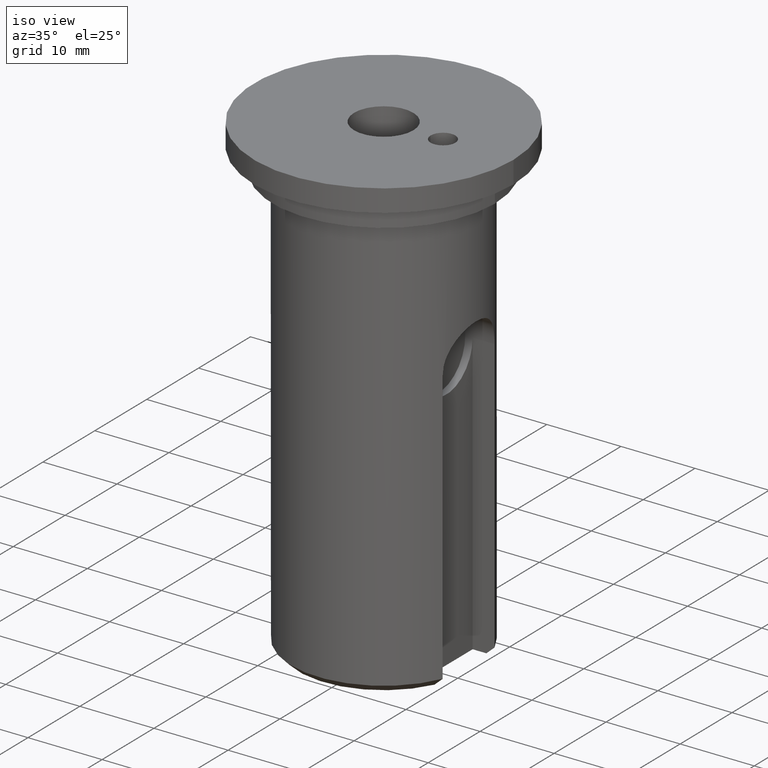
[diagram: clean part render]
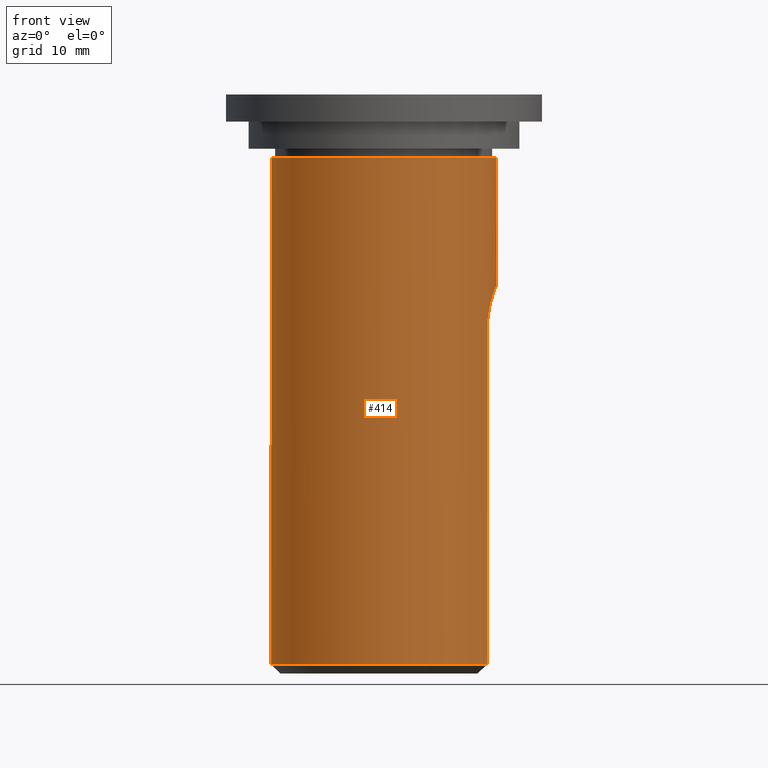
[diagram: tour spotlight — one face highlighted and labeled with its STEP entity id]
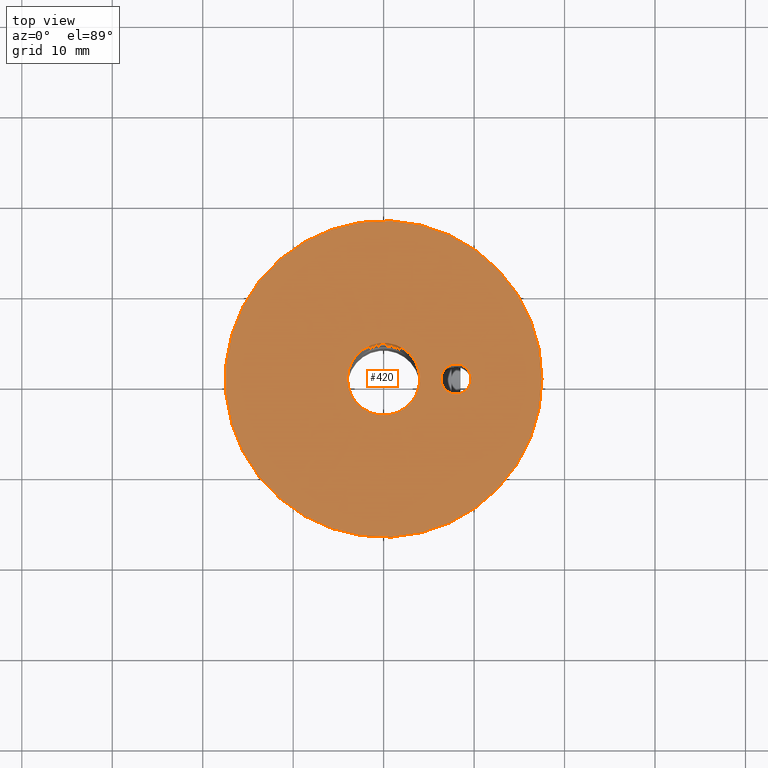
[diagram: tour spotlight — one face highlighted and labeled with its STEP entity id]
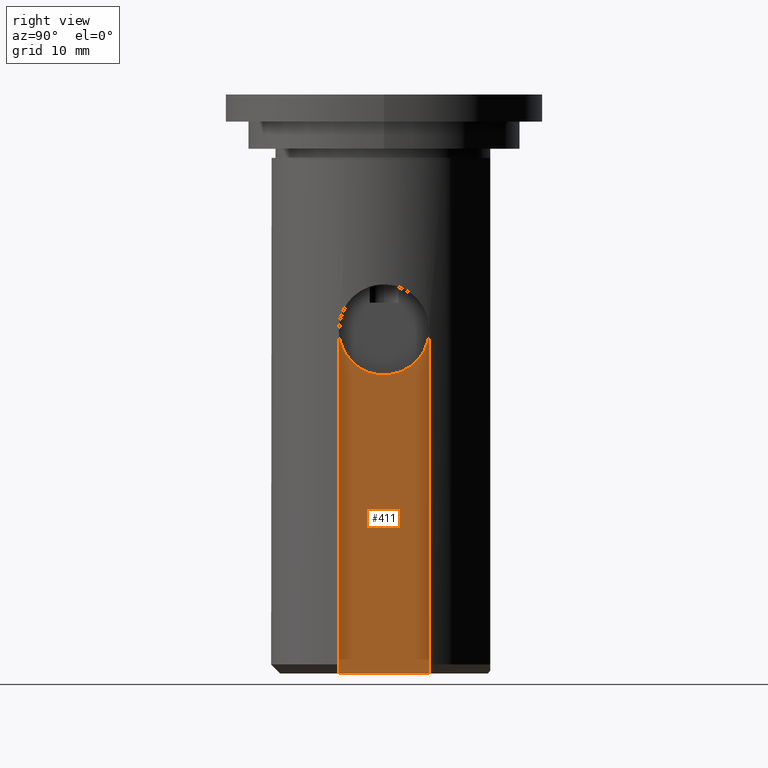
[diagram: tour spotlight — one face highlighted and labeled with its STEP entity id]
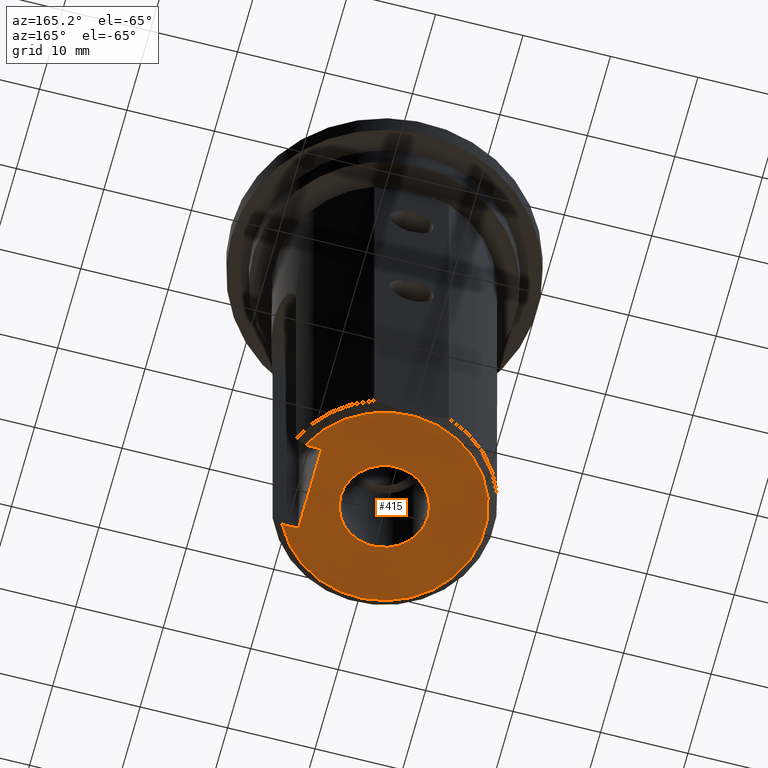
[diagram: tour spotlight — one face highlighted and labeled with its STEP entity id]
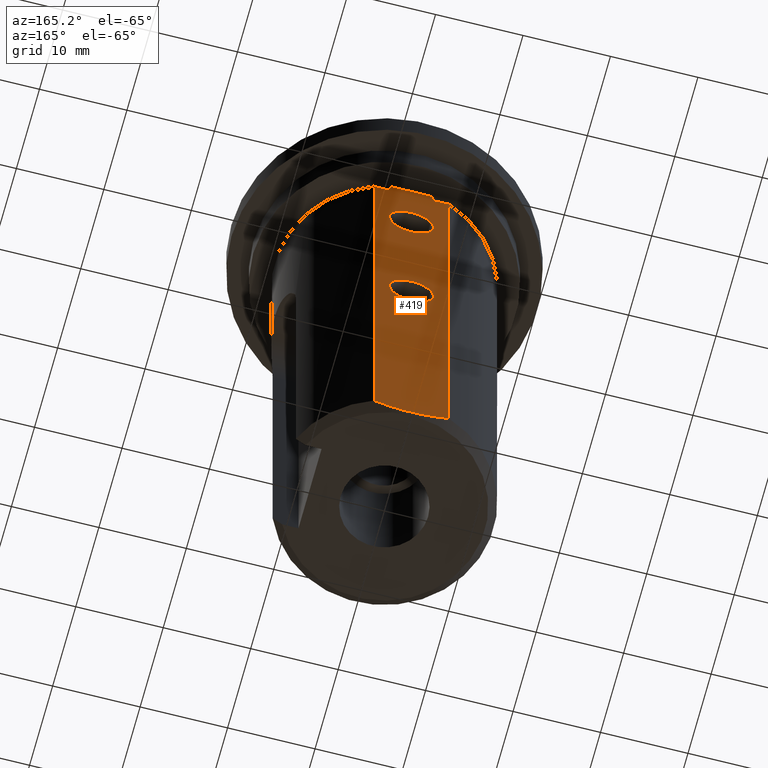
[diagram: tour spotlight — one face highlighted and labeled with its STEP entity id]
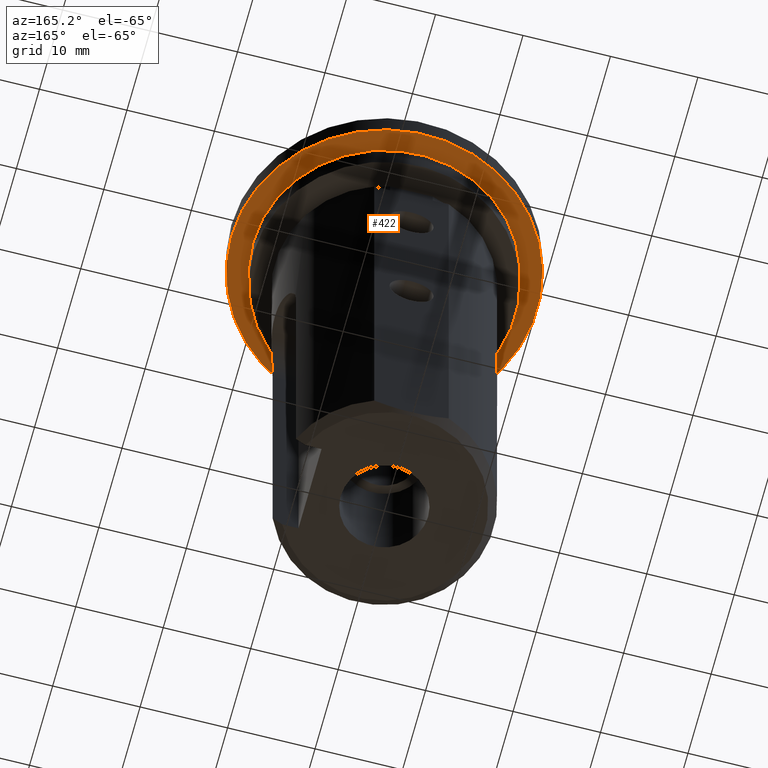
[diagram: tour spotlight — one face highlighted and labeled with its STEP entity id]
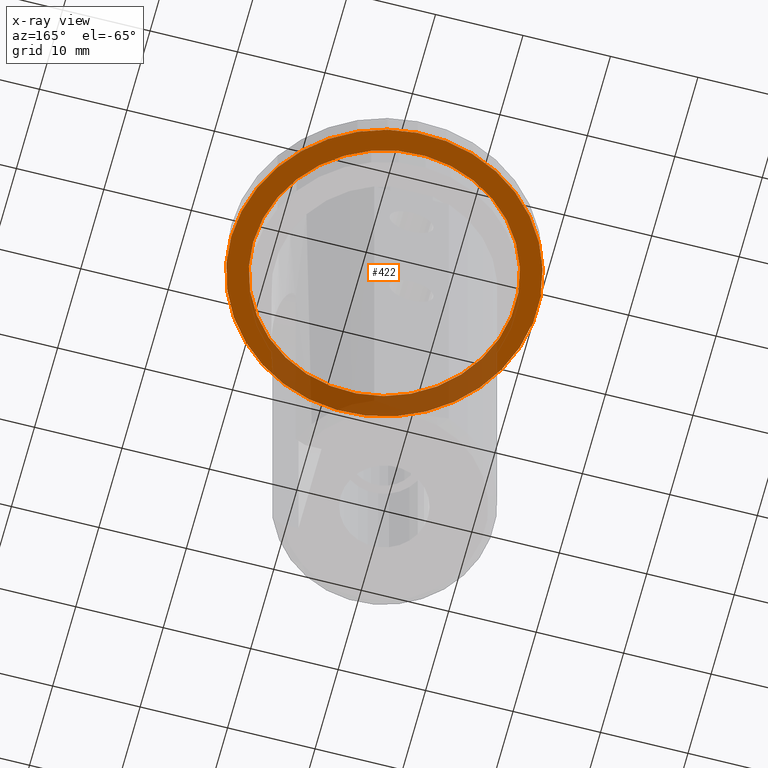
[diagram: x-ray of the same camera — body ghosted, this tour face saturated]
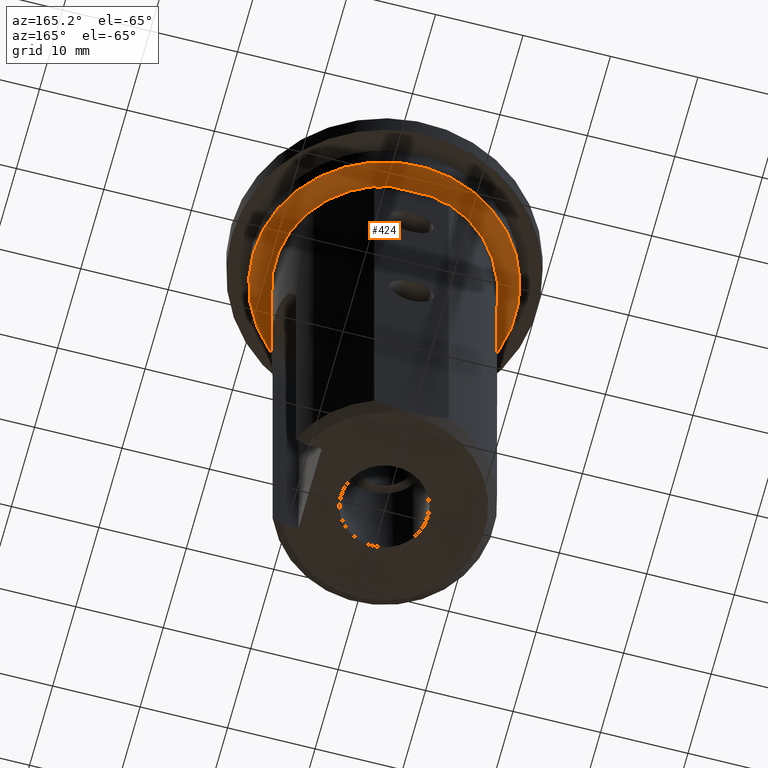
[diagram: tour spotlight — one face highlighted and labeled with its STEP entity id]
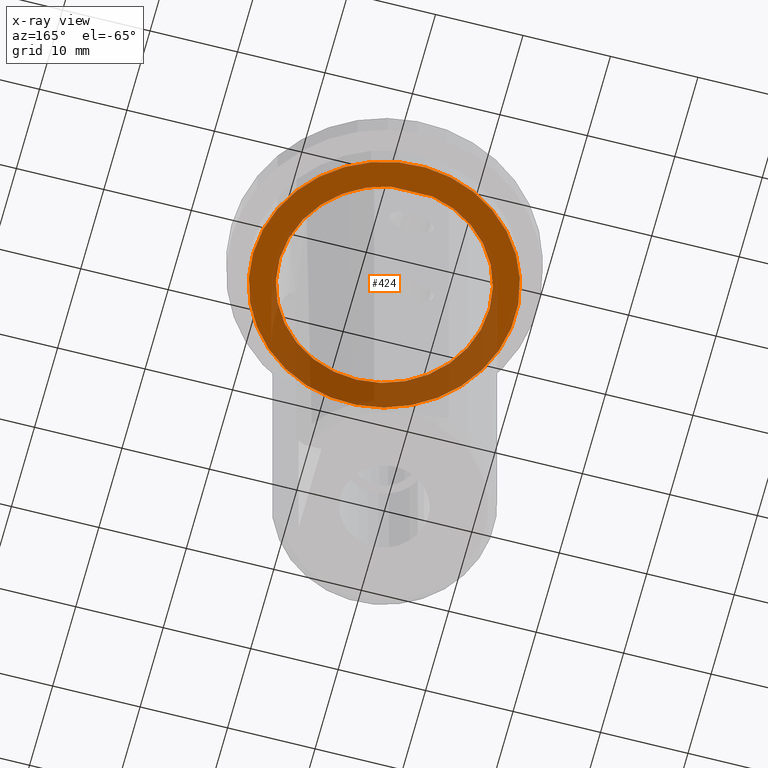
[diagram: x-ray of the same camera — body ghosted, this tour face saturated]
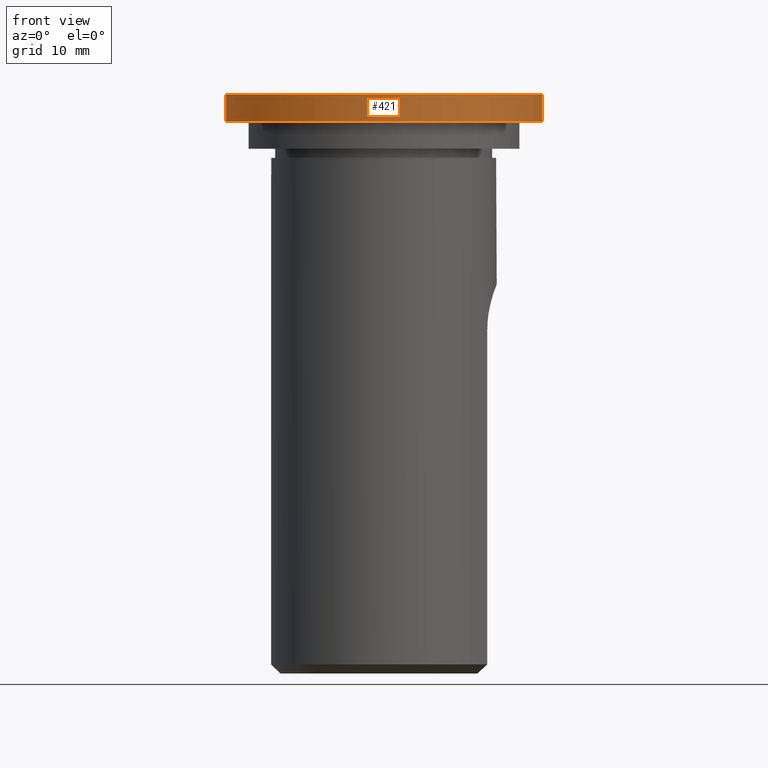
[diagram: tour spotlight — one face highlighted and labeled with its STEP entity id]
A machine part: a face-by-face anatomy tour. The part has 23 B-rep faces; the first image is the clean iso view, then the 8 largest visible faces are spotlighted one at a time (largest first), each with its STEP entity span.

Face 1 — front view, entity #414. In plain terms, the highlighted cylindrical surface (partial cylindrical patch) has radius 12.5 mm, axis along (0, 0, -1).
Definition (entity closure, byte-faithful):
#48=FACE_OUTER_BOUND('',#71,.T.);
#71=EDGE_LOOP('',(#319,#320,#321,#322,#323,#324,#325,#326,#327));
#99=B_SPLINE_CURVE_WITH_KNOTS('',3,(#650,#651,#652,#653,#654,#655,#656,
#657,#658,#659),.UNSPECIFIED.,.F.,.F.,(4,2,2,2,4),(-0.762729335551936,-0.572143500402293,
-0.381557665252652,-0.190778832626326,0.),.UNSPECIFIED.);
#100=B_SPLINE_CURVE_WITH_KNOTS('',3,(#663,#664,#665,#666,#667,#668,#669,
#670,#671,#672),.UNSPECIFIED.,.F.,.F.,(4,2,2,2,4),(-1.52545867110387,-1.33467983847755,
-1.14390100585122,-0.953315170701578,-0.762729335551936),.UNSPECIFIED.);
#115=LINE('',#687,#142);
#117=LINE('',#695,#144);
#119=LINE('',#705,#146);
#120=LINE('',#709,#147);
#142=VECTOR('',#522,10.);
#144=VECTOR('',#526,10.);
#146=VECTOR('',#532,10.);
#147=VECTOR('',#535,10.);
#164=CIRCLE('',#457,12.5);
#165=CIRCLE('',#458,12.5);
#166=CIRCLE('',#459,12.5);
#187=VERTEX_POINT('',#648);
#188=VERTEX_POINT('',#649);
#189=VERTEX_POINT('',#662);
#194=VERTEX_POINT('',#686);
#196=VERTEX_POINT('',#694);
#198=VERTEX_POINT('',#702);
#199=VERTEX_POINT('',#704);
#200=VERTEX_POINT('',#706);
#201=VERTEX_POINT('',#708);
#229=EDGE_CURVE('',#187,#188,#99,.T.);
#232=EDGE_CURVE('',#189,#187,#100,.T.);
#239=EDGE_CURVE('',#188,#194,#115,.T.);
#242=EDGE_CURVE('',#196,#189,#117,.T.);
#245=EDGE_CURVE('',#198,#194,#164,.T.);
#246=EDGE_CURVE('',#198,#199,#119,.T.);
#247=EDGE_CURVE('',#199,#200,#165,.T.);
#248=EDGE_CURVE('',#200,#201,#120,.T.);
#249=EDGE_CURVE('',#196,#201,#166,.T.);
#319=ORIENTED_EDGE('',*,*,#239,.T.);
#320=ORIENTED_EDGE('',*,*,#245,.F.);
#321=ORIENTED_EDGE('',*,*,#246,.T.);
#322=ORIENTED_EDGE('',*,*,#247,.T.);
#323=ORIENTED_EDGE('',*,*,#248,.T.);
#324=ORIENTED_EDGE('',*,*,#249,.F.);
#325=ORIENTED_EDGE('',*,*,#242,.T.);
#326=ORIENTED_EDGE('',*,*,#232,.T.);
#327=ORIENTED_EDGE('',*,*,#229,.T.);
#399=CYLINDRICAL_SURFACE('',#456,12.5);
#414=ADVANCED_FACE('',(#48),#399,.T.);
#456=AXIS2_PLACEMENT_3D('',#701,#528,#529);
#457=AXIS2_PLACEMENT_3D('',#703,#530,#531);
#458=AXIS2_PLACEMENT_3D('',#707,#533,#534);
#459=AXIS2_PLACEMENT_3D('',#710,#536,#537);
#522=DIRECTION('',(0.,0.,-1.));
#526=DIRECTION('',(0.,0.,1.));
#528=DIRECTION('center_axis',(0.,0.,-1.));
#529=DIRECTION('ref_axis',(1.83697019872103E-16,-1.,0.));
#530=DIRECTION('center_axis',(0.,0.,-1.));
#531=DIRECTION('ref_axis',(1.,0.,0.));
#532=DIRECTION('',(0.,0.,1.));
#533=DIRECTION('center_axis',(0.,0.,-1.));
#534=DIRECTION('ref_axis',(1.,0.,0.));
#535=DIRECTION('',(0.,0.,-1.));
#536=DIRECTION('center_axis',(0.,0.,-1.));
#537=DIRECTION('ref_axis',(1.,0.,0.));
#648=CARTESIAN_POINT('',(12.5,0.,-21.));
#649=CARTESIAN_POINT('',(11.4564392373896,5.,-26.));
#650=CARTESIAN_POINT('Ctrl Pts',(12.5,-8.32667268468867E-16,-21.));
#651=CARTESIAN_POINT('Ctrl Pts',(12.5,0.635286117165474,-21.));
#652=CARTESIAN_POINT('Ctrl Pts',(12.4469252213519,1.30822076923524,-21.128403580862));
#653=CARTESIAN_POINT('Ctrl Pts',(12.2554019139791,2.53821057671279,-21.6409428181784));
#654=CARTESIAN_POINT('Ctrl Pts',(12.1192560439259,3.0957770042138,-22.0247091923483));
#655=CARTESIAN_POINT('Ctrl Pts',(11.8597702544878,3.97573612916426,-22.9046683172988));
#656=CARTESIAN_POINT('Ctrl Pts',(11.7185171216983,4.35916477785056,-23.462066188643));
#657=CARTESIAN_POINT('Ctrl Pts',(11.5149895844636,4.87144550180163,-24.6913985047204));
#658=CARTESIAN_POINT('Ctrl Pts',(11.4564392373896,5.,-25.3640705579122));
#659=CARTESIAN_POINT('Ctrl Pts',(11.4564392373896,5.,-26.));
#662=CARTESIAN_POINT('',(11.4564392373896,-5.,-26.));
#663=CARTESIAN_POINT('Ctrl Pts',(11.4564392373896,-5.,-26.));
#664=CARTESIAN_POINT('Ctrl Pts',(11.4564392373896,-5.,-25.3640705579122));
#665=CARTESIAN_POINT('Ctrl Pts',(11.5149895844636,-4.87144550180163,-24.6913985047204));
#666=CARTESIAN_POINT('Ctrl Pts',(11.7185171216983,-4.35916477785056,-23.462066188643));
#667=CARTESIAN_POINT('Ctrl Pts',(11.8597702544878,-3.97573612916426,-22.9046683172988));
#668=CARTESIAN_POINT('Ctrl Pts',(12.1192560439259,-3.0957770042138,-22.0247091923483));
#669=CARTESIAN_POINT('Ctrl Pts',(12.2554019139791,-2.53821057671278,-21.6409428181784));
#670=CARTESIAN_POINT('Ctrl Pts',(12.4469252213519,-1.30822076923523,-21.128403580862));
#671=CARTESIAN_POINT('Ctrl Pts',(12.5,-0.635286117165473,-21.));
#672=CARTESIAN_POINT('Ctrl Pts',(12.5,-4.16333634234434E-16,-21.));
#686=CARTESIAN_POINT('',(11.4564392373896,5.,-63.));
#687=CARTESIAN_POINT('',(11.4564392373896,5.,-35.));
#694=CARTESIAN_POINT('',(11.4564392373896,-5.,-63.));
#695=CARTESIAN_POINT('',(11.4564392373896,-5.,-35.));
#701=CARTESIAN_POINT('Origin',(0.,0.,-35.));
#702=CARTESIAN_POINT('',(4.26468052730796,11.75,-63.));
#703=CARTESIAN_POINT('Origin',(0.,0.,-63.));
#704=CARTESIAN_POINT('',(4.26468052730799,11.75,-7.));
#705=CARTESIAN_POINT('',(4.26468052730798,11.75,-35.));
#706=CARTESIAN_POINT('',(-4.26468052730799,11.75,-7.));
#707=CARTESIAN_POINT('Origin',(0.,0.,-7.));
#708=CARTESIAN_POINT('',(-4.26468052730796,11.75,-63.));
#709=CARTESIAN_POINT('',(-4.26468052730798,11.75,-35.));
#710=CARTESIAN_POINT('Origin',(0.,0.,-63.));

Face 2 — top view, entity #420. In plain terms, the highlighted planar face has unit normal (0, 0, 1).
Definition (entity closure, byte-faithful):
#19=FACE_BOUND('',#81,.T.);
#20=FACE_BOUND('',#82,.T.);
#36=PLANE('',#469);
#54=FACE_OUTER_BOUND('',#80,.T.);
#80=EDGE_LOOP('',(#359));
#81=EDGE_LOOP('',(#360));
#82=EDGE_LOOP('',(#361));
#159=CIRCLE('',#445,1.666);
#171=CIRCLE('',#470,17.5);
#172=CIRCLE('',#471,4.);
#180=VERTEX_POINT('',#607);
#213=VERTEX_POINT('',#814);
#214=VERTEX_POINT('',#816);
#220=EDGE_CURVE('',#180,#180,#159,.T.);
#266=EDGE_CURVE('',#213,#213,#171,.T.);
#267=EDGE_CURVE('',#214,#214,#172,.T.);
#359=ORIENTED_EDGE('',*,*,#266,.F.);
#360=ORIENTED_EDGE('',*,*,#220,.T.);
#361=ORIENTED_EDGE('',*,*,#267,.T.);
#420=ADVANCED_FACE('',(#54,#19,#20),#36,.T.);
#445=AXIS2_PLACEMENT_3D('',#608,#492,#493);
#469=AXIS2_PLACEMENT_3D('',#813,#563,#564);
#470=AXIS2_PLACEMENT_3D('',#815,#565,#566);
#471=AXIS2_PLACEMENT_3D('',#817,#567,#568);
#492=DIRECTION('center_axis',(0.,0.,-1.));
#493=DIRECTION('ref_axis',(1.,0.,0.));
#563=DIRECTION('center_axis',(0.,0.,1.));
#564=DIRECTION('ref_axis',(1.,0.,0.));
#565=DIRECTION('center_axis',(0.,0.,-1.));
#566=DIRECTION('ref_axis',(1.,0.,0.));
#567=DIRECTION('center_axis',(0.,0.,-1.));
#568=DIRECTION('ref_axis',(1.,0.,0.));
#607=CARTESIAN_POINT('',(6.33400011920929,2.04026156737949E-16,-3.88578058618805E-15));
#608=CARTESIAN_POINT('Origin',(8.00000011920929,0.,-3.88578058618805E-15));
#813=CARTESIAN_POINT('Origin',(-17.5,0.,-3.88578058618805E-15));
#814=CARTESIAN_POINT('',(17.5,-2.14313189850787E-15,-4.44089209850063E-15));
#815=CARTESIAN_POINT('Origin',(0.,0.,-4.44089209850063E-15));
#816=CARTESIAN_POINT('',(4.,-4.89858719658941E-16,-4.44089209850063E-15));
#817=CARTESIAN_POINT('Origin',(0.,0.,-4.44089209850063E-15));

Face 3 — right view, entity #411. In plain terms, the highlighted planar face has unit normal (1, 0, 0).
Definition (entity closure, byte-faithful):
#31=PLANE('',#453);
#45=FACE_OUTER_BOUND('',#68,.T.);
#68=EDGE_LOOP('',(#305,#306,#307,#308));
#112=LINE('',#681,#139);
#113=LINE('',#683,#140);
#114=LINE('',#684,#141);
#139=VECTOR('',#517,10.);
#140=VECTOR('',#518,10.);
#141=VECTOR('',#519,10.);
#163=CIRCLE('',#451,5.);
#190=VERTEX_POINT('',#673);
#191=VERTEX_POINT('',#675);
#192=VERTEX_POINT('',#680);
#193=VERTEX_POINT('',#682);
#234=EDGE_CURVE('',#191,#190,#163,.T.);
#236=EDGE_CURVE('',#192,#190,#112,.T.);
#237=EDGE_CURVE('',#193,#192,#113,.T.);
#238=EDGE_CURVE('',#191,#193,#114,.T.);
#305=ORIENTED_EDGE('',*,*,#234,.T.);
#306=ORIENTED_EDGE('',*,*,#236,.F.);
#307=ORIENTED_EDGE('',*,*,#237,.F.);
#308=ORIENTED_EDGE('',*,*,#238,.F.);
#411=ADVANCED_FACE('',(#45),#31,.T.);
#451=AXIS2_PLACEMENT_3D('',#676,#510,#511);
#453=AXIS2_PLACEMENT_3D('',#679,#515,#516);
#510=DIRECTION('center_axis',(-1.,0.,0.));
#511=DIRECTION('ref_axis',(0.,0.,-1.));
#515=DIRECTION('center_axis',(1.,0.,0.));
#516=DIRECTION('ref_axis',(0.,0.,-1.));
#517=DIRECTION('',(0.,0.,1.));
#518=DIRECTION('',(0.,-1.,0.));
#519=DIRECTION('',(0.,5.84327907697451E-17,-1.));
#673=CARTESIAN_POINT('',(8.49999999999999,-5.,-26.));
#675=CARTESIAN_POINT('',(8.49999999999999,5.,-26.));
#676=CARTESIAN_POINT('Origin',(8.49999999999999,0.,-26.));
#679=CARTESIAN_POINT('Origin',(8.49999999999999,1.11022302462516E-15,-42.5));
#680=CARTESIAN_POINT('',(8.49999999999999,-5.,-64.));
#681=CARTESIAN_POINT('',(8.49999999999999,-5.,-26.));
#682=CARTESIAN_POINT('',(8.49999999999999,5.,-64.));
#683=CARTESIAN_POINT('',(8.5,5.55111512312578E-16,-64.));
#684=CARTESIAN_POINT('',(8.49999999999999,5.,-26.));

Face 4 — auxiliary view, entity #415. In plain terms, the highlighted planar face has unit normal (0, 0, -1).
Definition (entity closure, byte-faithful):
#16=FACE_BOUND('',#73,.T.);
#34=PLANE('',#460);
#49=FACE_OUTER_BOUND('',#72,.T.);
#72=EDGE_LOOP('',(#328,#329,#330,#331));
#73=EDGE_LOOP('',(#332));
#113=LINE('',#683,#140);
#116=LINE('',#689,#143);
#118=LINE('',#700,#145);
#140=VECTOR('',#518,10.);
#143=VECTOR('',#523,10.);
#145=VECTOR('',#527,10.);
#167=CIRCLE('',#461,11.5);
#168=CIRCLE('',#462,5.00000000000024);
#192=VERTEX_POINT('',#680);
#193=VERTEX_POINT('',#682);
#195=VERTEX_POINT('',#688);
#197=VERTEX_POINT('',#696);
#202=VERTEX_POINT('',#713);
#237=EDGE_CURVE('',#193,#192,#113,.T.);
#240=EDGE_CURVE('',#195,#193,#116,.T.);
#244=EDGE_CURVE('',#192,#197,#118,.T.);
#250=EDGE_CURVE('',#197,#195,#167,.T.);
#251=EDGE_CURVE('',#202,#202,#168,.T.);
#328=ORIENTED_EDGE('',*,*,#240,.T.);
#329=ORIENTED_EDGE('',*,*,#237,.T.);
#330=ORIENTED_EDGE('',*,*,#244,.T.);
#331=ORIENTED_EDGE('',*,*,#250,.T.);
#332=ORIENTED_EDGE('',*,*,#251,.F.);
#415=ADVANCED_FACE('',(#49,#16),#34,.T.);
#460=AXIS2_PLACEMENT_3D('',#711,#538,#539);
#461=AXIS2_PLACEMENT_3D('',#712,#540,#541);
#462=AXIS2_PLACEMENT_3D('',#714,#542,#543);
#518=DIRECTION('',(0.,-1.,0.));
#523=DIRECTION('',(-1.,0.,0.));
#527=DIRECTION('',(1.,0.,0.));
#538=DIRECTION('center_axis',(0.,0.,-1.));
#539=DIRECTION('ref_axis',(-1.,0.,0.));
#540=DIRECTION('center_axis',(0.,0.,-1.));
#541=DIRECTION('ref_axis',(1.,0.,0.));
#542=DIRECTION('center_axis',(0.,0.,-1.));
#543=DIRECTION('ref_axis',(1.,0.,0.));
#680=CARTESIAN_POINT('',(8.49999999999999,-5.,-64.));
#682=CARTESIAN_POINT('',(8.49999999999999,5.,-64.));
#683=CARTESIAN_POINT('',(8.5,5.55111512312578E-16,-64.));
#688=CARTESIAN_POINT('',(10.356157588604,5.,-64.));
#689=CARTESIAN_POINT('',(3.74999999999988,5.,-64.));
#696=CARTESIAN_POINT('',(10.356157588604,-5.,-64.));
#700=CARTESIAN_POINT('',(3.74999999999988,-5.,-64.));
#711=CARTESIAN_POINT('Origin',(-5.00000000000024,0.,-64.));
#712=CARTESIAN_POINT('Origin',(0.,0.,-64.));
#713=CARTESIAN_POINT('',(5.00000000000012,-6.12323399573691E-16,-64.));
#714=CARTESIAN_POINT('Origin',(0.,0.,-64.));

Face 5 — auxiliary view, entity #419. In plain terms, the highlighted planar face has unit normal (0, -1, 0).
Definition (entity closure, byte-faithful):
#17=FACE_BOUND('',#78,.T.);
#18=FACE_BOUND('',#79,.T.);
#28=(
BOUNDED_CURVE()
B_SPLINE_CURVE(2,(#716,#717,#718),.UNSPECIFIED.,.F.,.F.)
B_SPLINE_CURVE_WITH_KNOTS((3,3),(0.,0.86602540378443),.UNSPECIFIED.)
CURVE()
GEOMETRIC_REPRESENTATION_ITEM()
RATIONAL_B_SPLINE_CURVE((1.,1.06382978723403,1.))
REPRESENTATION_ITEM('')
);
#35=PLANE('',#468);
#53=FACE_OUTER_BOUND('',#77,.T.);
#77=EDGE_LOOP('',(#349,#350,#351,#352,#353,#354,#355,#356));
#78=EDGE_LOOP('',(#357));
#79=EDGE_LOOP('',(#358));
#119=LINE('',#705,#146);
#120=LINE('',#709,#147);
#123=LINE('',#806,#150);
#124=LINE('',#808,#151);
#125=LINE('',#810,#152);
#126=LINE('',#811,#153);
#127=LINE('',#812,#154);
#146=VECTOR('',#532,10.);
#147=VECTOR('',#535,10.);
#150=VECTOR('',#558,10.);
#151=VECTOR('',#559,10.);
#152=VECTOR('',#560,10.);
#153=VECTOR('',#561,10.);
#154=VECTOR('',#562,10.);
#169=CIRCLE('',#465,2.5175);
#170=CIRCLE('',#467,2.5175);
#198=VERTEX_POINT('',#702);
#199=VERTEX_POINT('',#704);
#200=VERTEX_POINT('',#706);
#201=VERTEX_POINT('',#708);
#203=VERTEX_POINT('',#720);
#206=VERTEX_POINT('',#762);
#209=VERTEX_POINT('',#804);
#210=VERTEX_POINT('',#805);
#211=VERTEX_POINT('',#807);
#212=VERTEX_POINT('',#809);
#246=EDGE_CURVE('',#198,#199,#119,.T.);
#248=EDGE_CURVE('',#200,#201,#120,.T.);
#252=EDGE_CURVE('',#201,#198,#28,.T.);
#253=EDGE_CURVE('',#203,#203,#169,.F.);
#257=EDGE_CURVE('',#206,#206,#170,.F.);
#261=EDGE_CURVE('',#209,#210,#123,.T.);
#262=EDGE_CURVE('',#209,#211,#124,.T.);
#263=EDGE_CURVE('',#212,#211,#125,.T.);
#264=EDGE_CURVE('',#199,#212,#126,.T.);
#265=EDGE_CURVE('',#210,#200,#127,.T.);
#349=ORIENTED_EDGE('',*,*,#261,.F.);
#350=ORIENTED_EDGE('',*,*,#262,.T.);
#351=ORIENTED_EDGE('',*,*,#263,.F.);
#352=ORIENTED_EDGE('',*,*,#264,.F.);
#353=ORIENTED_EDGE('',*,*,#246,.F.);
#354=ORIENTED_EDGE('',*,*,#252,.F.);
#355=ORIENTED_EDGE('',*,*,#248,.F.);
#356=ORIENTED_EDGE('',*,*,#265,.F.);
#357=ORIENTED_EDGE('',*,*,#253,.T.);
#358=ORIENTED_EDGE('',*,*,#257,.T.);
#419=ADVANCED_FACE('',(#53,#17,#18),#35,.F.);
#465=AXIS2_PLACEMENT_3D('',#721,#548,#549);
#467=AXIS2_PLACEMENT_3D('',#763,#553,#554);
#468=AXIS2_PLACEMENT_3D('',#803,#556,#557);
#532=DIRECTION('',(0.,0.,1.));
#535=DIRECTION('',(0.,0.,-1.));
#548=DIRECTION('center_axis',(0.,1.,0.));
#549=DIRECTION('ref_axis',(-1.,0.,0.));
#553=DIRECTION('center_axis',(0.,1.,0.));
#554=DIRECTION('ref_axis',(-1.,0.,0.));
#556=DIRECTION('center_axis',(0.,-1.,0.));
#557=DIRECTION('ref_axis',(1.,0.,0.));
#558=DIRECTION('',(0.,0.,-1.));
#559=DIRECTION('',(1.,0.,0.));
#560=DIRECTION('',(0.,0.,1.));
#561=DIRECTION('',(-1.,0.,0.));
#562=DIRECTION('',(-1.,0.,0.));
#702=CARTESIAN_POINT('',(4.26468052730796,11.75,-63.));
#704=CARTESIAN_POINT('',(4.26468052730799,11.75,-7.));
#705=CARTESIAN_POINT('',(4.26468052730798,11.75,-35.));
#706=CARTESIAN_POINT('',(-4.26468052730799,11.75,-7.));
#708=CARTESIAN_POINT('',(-4.26468052730796,11.75,-63.));
#709=CARTESIAN_POINT('',(-4.26468052730798,11.75,-35.));
#716=CARTESIAN_POINT('Ctrl Pts',(-4.26468052730796,11.75,-63.));
#717=CARTESIAN_POINT('Ctrl Pts',(0.,11.75,-64.455));
#718=CARTESIAN_POINT('Ctrl Pts',(4.26468052730796,11.75,-63.));
#720=CARTESIAN_POINT('',(2.5175,11.75,-14.));
#721=CARTESIAN_POINT('Origin',(0.,11.75,-14.));
#762=CARTESIAN_POINT('',(2.5175,11.75,-32.));
#763=CARTESIAN_POINT('Origin',(0.,11.75,-32.));
#803=CARTESIAN_POINT('Origin',(-11.75,11.75,-64.));
#804=CARTESIAN_POINT('',(-2.43669858620224,11.75,-6.00000000000001));
#805=CARTESIAN_POINT('',(-2.43669858620224,11.75,-7.));
#806=CARTESIAN_POINT('',(-2.43669858620224,11.75,-6.5));
#807=CARTESIAN_POINT('',(2.43669858620224,11.75,-6.00000000000001));
#808=CARTESIAN_POINT('',(11.75,11.75,-5.99999999999999));
#809=CARTESIAN_POINT('',(2.43669858620224,11.75,-7.));
#810=CARTESIAN_POINT('',(2.43669858620224,11.75,-6.5));
#811=CARTESIAN_POINT('',(-12.125,11.75,-7.));
#812=CARTESIAN_POINT('',(-12.125,11.75,-7.));

Face 6 — auxiliary view, entity #422. An x-ray twin of the same camera follows (body ghosted, this face saturated) — the face is partly hidden behind the body. In plain terms, the highlighted planar face has unit normal (0, 0, -1).
Definition (entity closure, byte-faithful):
#21=FACE_BOUND('',#85,.T.);
#37=PLANE('',#474);
#56=FACE_OUTER_BOUND('',#84,.T.);
#84=EDGE_LOOP('',(#366));
#85=EDGE_LOOP('',(#367));
#173=CIRCLE('',#473,17.5);
#174=CIRCLE('',#475,15.);
#215=VERTEX_POINT('',#819);
#216=VERTEX_POINT('',#823);
#268=EDGE_CURVE('',#215,#215,#173,.T.);
#270=EDGE_CURVE('',#216,#216,#174,.T.);
#366=ORIENTED_EDGE('',*,*,#268,.T.);
#367=ORIENTED_EDGE('',*,*,#270,.F.);
#422=ADVANCED_FACE('',(#56,#21),#37,.T.);
#473=AXIS2_PLACEMENT_3D('',#820,#571,#572);
#474=AXIS2_PLACEMENT_3D('',#822,#574,#575);
#475=AXIS2_PLACEMENT_3D('',#824,#576,#577);
#571=DIRECTION('center_axis',(0.,0.,-1.));
#572=DIRECTION('ref_axis',(1.,0.,0.));
#574=DIRECTION('center_axis',(0.,0.,-1.));
#575=DIRECTION('ref_axis',(-1.,0.,0.));
#576=DIRECTION('center_axis',(0.,0.,-1.));
#577=DIRECTION('ref_axis',(1.,0.,0.));
#819=CARTESIAN_POINT('',(17.5,-2.14313189850787E-15,-3.));
#820=CARTESIAN_POINT('Origin',(0.,0.,-3.));
#822=CARTESIAN_POINT('Origin',(-15.,0.,-3.));
#823=CARTESIAN_POINT('',(15.,-1.83697019872103E-15,-3.));
#824=CARTESIAN_POINT('Origin',(0.,0.,-3.));

Face 7 — auxiliary view, entity #424. An x-ray twin of the same camera follows (body ghosted, this face saturated) — the face is partly hidden behind the body. In plain terms, the highlighted planar face has unit normal (0, 0, -1).
Definition (entity closure, byte-faithful):
#22=FACE_BOUND('',#88,.T.);
#38=PLANE('',#478);
#58=FACE_OUTER_BOUND('',#87,.T.);
#87=EDGE_LOOP('',(#372));
#88=EDGE_LOOP('',(#373,#374));
#124=LINE('',#808,#151);
#151=VECTOR('',#559,10.);
#175=CIRCLE('',#477,15.);
#176=CIRCLE('',#479,12.);
#209=VERTEX_POINT('',#804);
#211=VERTEX_POINT('',#807);
#217=VERTEX_POINT('',#826);
#262=EDGE_CURVE('',#209,#211,#124,.T.);
#271=EDGE_CURVE('',#217,#217,#175,.T.);
#273=EDGE_CURVE('',#211,#209,#176,.T.);
#372=ORIENTED_EDGE('',*,*,#271,.T.);
#373=ORIENTED_EDGE('',*,*,#273,.F.);
#374=ORIENTED_EDGE('',*,*,#262,.F.);
#424=ADVANCED_FACE('',(#58,#22),#38,.T.);
#477=AXIS2_PLACEMENT_3D('',#827,#580,#581);
#478=AXIS2_PLACEMENT_3D('',#829,#583,#584);
#479=AXIS2_PLACEMENT_3D('',#830,#585,#586);
#559=DIRECTION('',(1.,0.,0.));
#580=DIRECTION('center_axis',(0.,0.,-1.));
#581=DIRECTION('ref_axis',(1.,0.,0.));
#583=DIRECTION('center_axis',(0.,0.,-1.));
#584=DIRECTION('ref_axis',(-1.,0.,0.));
#585=DIRECTION('center_axis',(0.,0.,-1.));
#586=DIRECTION('ref_axis',(1.,0.,0.));
#804=CARTESIAN_POINT('',(-2.43669858620224,11.75,-6.00000000000001));
#807=CARTESIAN_POINT('',(2.43669858620224,11.75,-6.00000000000001));
#808=CARTESIAN_POINT('',(11.75,11.75,-5.99999999999999));
#826=CARTESIAN_POINT('',(15.,-1.83697019872103E-15,-6.00000000000001));
#827=CARTESIAN_POINT('Origin',(0.,0.,-6.00000000000001));
#829=CARTESIAN_POINT('Origin',(-12.,0.,-6.00000000000001));
#830=CARTESIAN_POINT('Origin',(0.,0.,-6.00000000000001));

Face 8 — front view, entity #421. In plain terms, the highlighted cylindrical surface (bore or boss wall) has radius 17.5 mm, axis along (0, 0, -1).
Definition (entity closure, byte-faithful):
#55=FACE_OUTER_BOUND('',#83,.T.);
#83=EDGE_LOOP('',(#362,#363,#364,#365));
#128=LINE('',#821,#155);
#155=VECTOR('',#573,17.5);
#171=CIRCLE('',#470,17.5);
#173=CIRCLE('',#473,17.5);
#213=VERTEX_POINT('',#814);
#215=VERTEX_POINT('',#819);
#266=EDGE_CURVE('',#213,#213,#171,.T.);
#268=EDGE_CURVE('',#215,#215,#173,.T.);
#269=EDGE_CURVE('',#215,#213,#128,.T.);
#362=ORIENTED_EDGE('',*,*,#268,.F.);
#363=ORIENTED_EDGE('',*,*,#269,.T.);
#364=ORIENTED_EDGE('',*,*,#266,.T.);
#365=ORIENTED_EDGE('',*,*,#269,.F.);
#402=CYLINDRICAL_SURFACE('',#472,17.5);
#421=ADVANCED_FACE('',(#55),#402,.T.);
#470=AXIS2_PLACEMENT_3D('',#815,#565,#566);
#472=AXIS2_PLACEMENT_3D('',#818,#569,#570);
#473=AXIS2_PLACEMENT_3D('',#820,#571,#572);
#565=DIRECTION('center_axis',(0.,0.,-1.));
#566=DIRECTION('ref_axis',(1.,0.,0.));
#569=DIRECTION('center_axis',(0.,0.,-1.));
#570=DIRECTION('ref_axis',(-1.,0.,0.));
#571=DIRECTION('center_axis',(0.,0.,-1.));
#572=DIRECTION('ref_axis',(1.,0.,0.));
#573=DIRECTION('',(0.,0.,1.));
#814=CARTESIAN_POINT('',(17.5,-2.14313189850787E-15,-4.44089209850063E-15));
#815=CARTESIAN_POINT('Origin',(0.,0.,-4.44089209850063E-15));
#818=CARTESIAN_POINT('Origin',(0.,0.,-1.5));
#819=CARTESIAN_POINT('',(17.5,-2.14313189850787E-15,-3.));
#820=CARTESIAN_POINT('Origin',(0.,0.,-3.));
#821=CARTESIAN_POINT('',(17.5,-2.14313189850787E-15,-1.5));